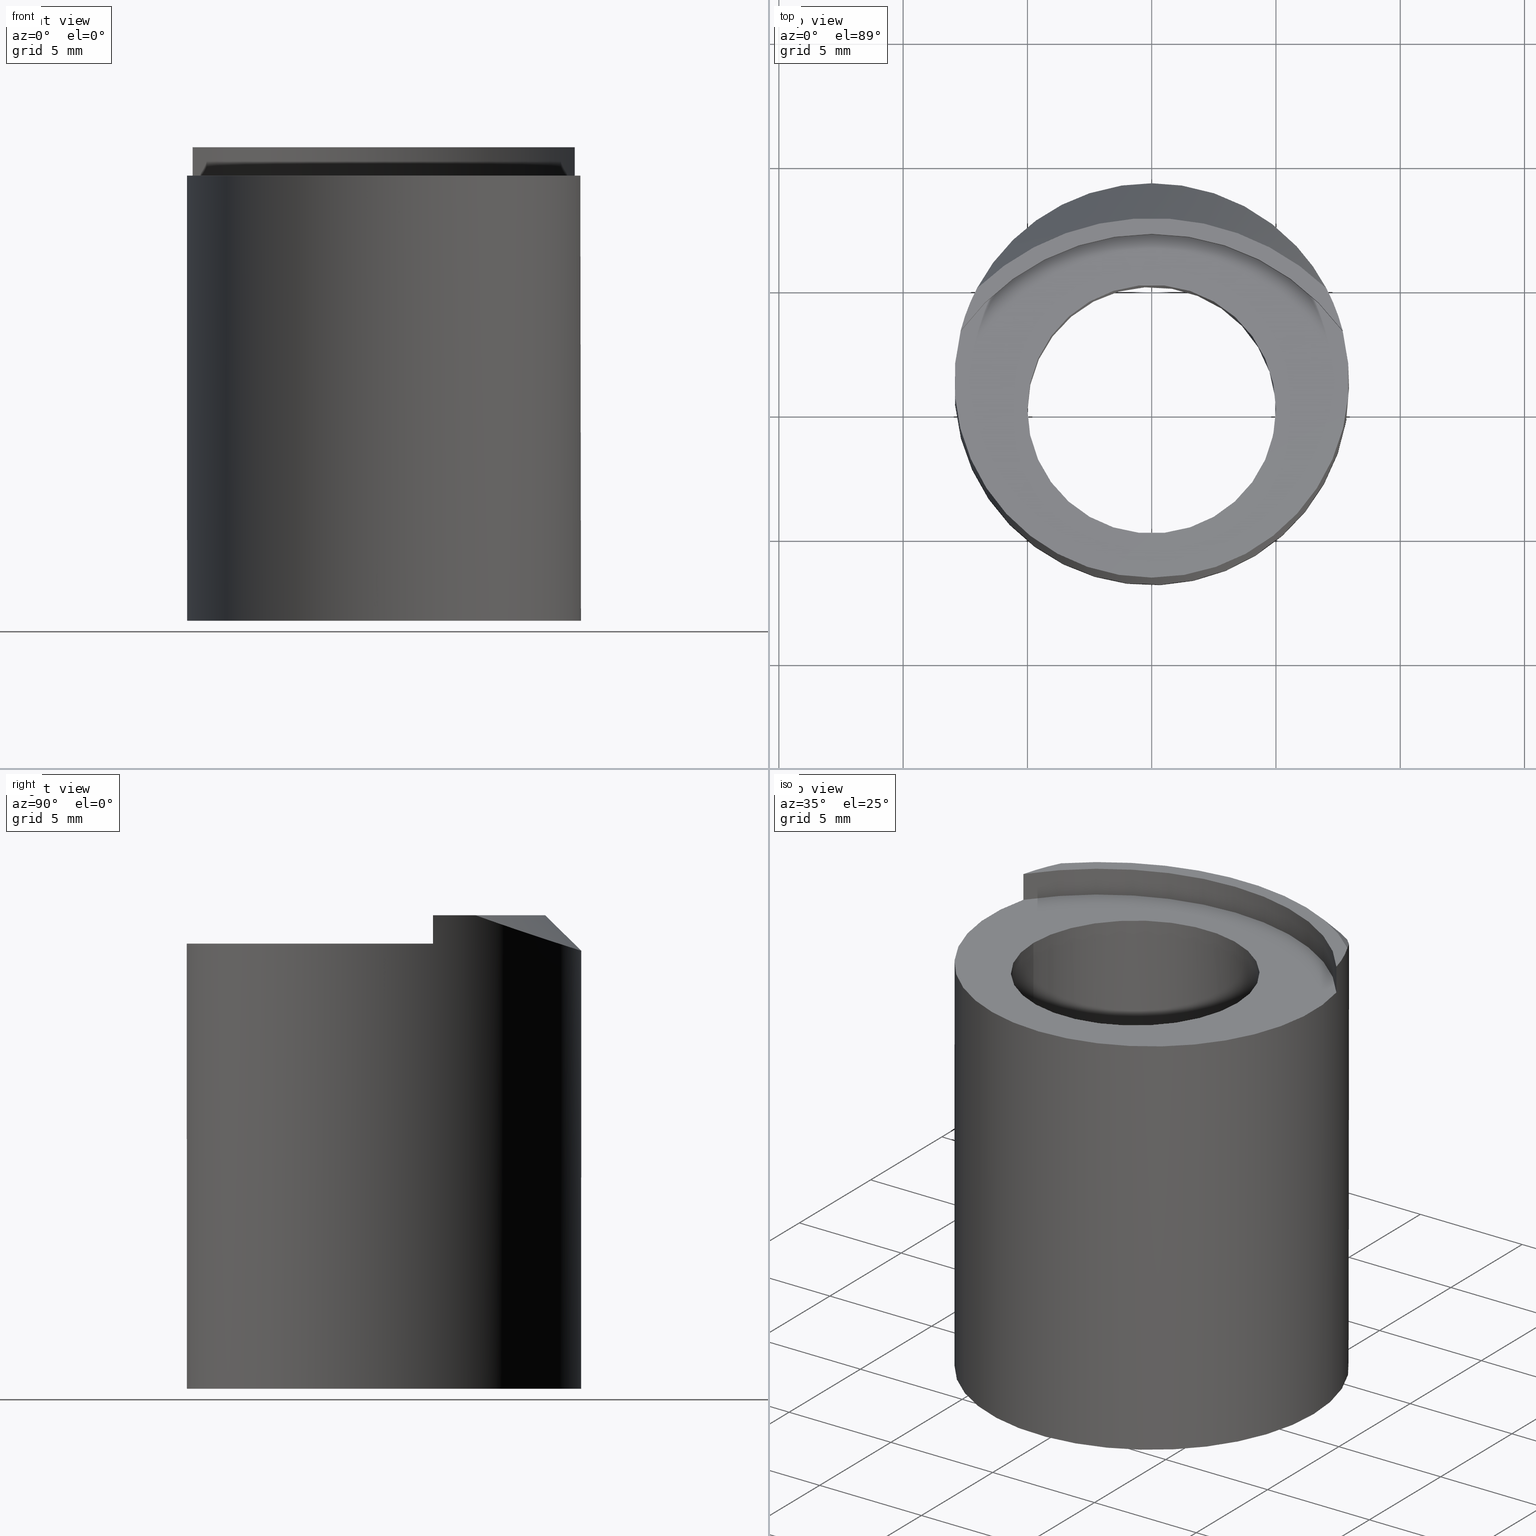
[diagram: canonical four-view strip — front | top / right | iso, engineering-drawing reading convention]
A machine part, canonical four-view strip (front | top / right | iso — engineering-drawing reading convention). The complete STEP part file that produces these views, byte-faithful:
ISO-10303-21;
HEADER;
FILE_DESCRIPTION (( 'STEP AP214' ),
    '1' );
FILE_NAME ('BK0007.STEP',
    '2012-08-02T19:01:26',
    ( '' ),
    ( '' ),
    'SwSTEP 2.0',
    'SolidWorks 2012',
    '' );
FILE_SCHEMA (( 'AUTOMOTIVE_DESIGN' ));
ENDSEC;

DATA;
#1 = PRODUCT_DEFINITION_CONTEXT ( 'detailed design', #143, 'design' ) ;
#2 = PRODUCT_DEFINITION_SHAPE ( 'NONE', 'NONE',  #75 ) ;
#3 = EDGE_CURVE ( 'NONE', #283, #283, #216, .T. ) ;
#4 = EDGE_CURVE ( 'NONE', #220, #214, #28, .T. ) ;
#5 = EDGE_CURVE ( 'NONE', #282, #282, #287, .T. ) ;
#6 = EDGE_CURVE ( 'NONE', #206, #211, #289, .T. ) ;
#7 = EDGE_CURVE ( 'NONE', #206, #214, #259, .T. ) ;
#8 = EDGE_CURVE ( 'NONE', #220, #222, #230, .T. ) ;
#9 = EDGE_CURVE ( 'NONE', #255, #255, #292, .T. ) ;
#10 = EDGE_CURVE ( 'NONE', #219, #211, #240, .T. ) ;
#11 = EDGE_CURVE ( 'NONE', #211, #219, #296, .T. ) ;
#12 = EDGE_CURVE ( 'NONE', #206, #222, #288, .T. ) ;
#13 = DIRECTION ( 'NONE',  ( -1.000000000000000000, 0.0000000000000000000, 0.0000000000000000000 ) ) ;
#14 = CARTESIAN_POINT ( 'NONE',  ( 0.3026978152996571100, 0.1232572296140836500, 0.7275000000000001500 ) ) ;
#15 = CARTESIAN_POINT ( 'NONE',  ( -0.2639185556648692100, 0.2152199699562641900, 0.7411820063344279900 ) ) ;
#16 = CARTESIAN_POINT ( 'NONE',  ( -0.2767838932136466600, 0.1906744635389196800, 0.7500000000000001100 ) ) ;
#17 = DIRECTION ( 'NONE',  ( 0.0000000000000000000, 0.0000000000000000000, -1.000000000000000000 ) ) ;
#18 = CARTESIAN_POINT ( 'NONE',  ( -0.09941511264093359800, 0.3422108810394044500, 0.6988311407053969800 ) ) ;
#19 = CARTESIAN_POINT ( 'NONE',  ( -0.2092963217709726500, 0.2780903867774015500, 0.7197299492056457000 ) ) ;
#20 = CARTESIAN_POINT ( 'NONE',  ( -0.2196203082285445900, 0.2683481359285012600, 0.7229924179772816400 ) ) ;
#21 = CARTESIAN_POINT ( 'NONE',  ( -0.1874002531696883600, 0.2960753518701791400, 0.7137647165990170800 ) ) ;
#22 = CARTESIAN_POINT ( 'NONE',  ( -0.1130841271041534100, 0.3372736901040893100, 0.7004043256038181600 ) ) ;
#23 = CARTESIAN_POINT ( 'NONE',  ( -0.1393090193203537200, 0.3256973525380113500, 0.7041197478792662300 ) ) ;
#24 = CARTESIAN_POINT ( 'NONE',  ( -0.1759110791811329700, 0.3042710807239839000, 0.7110767639496367000 ) ) ;
#25 = CARTESIAN_POINT ( 'NONE',  ( -0.1518653794547868400, 0.3190819396654117100, 0.7062542649927352500 ) ) ;
#26 = CARTESIAN_POINT ( 'NONE',  ( 5.960459999999999900E-007, 0.04560001194499999800, 0.5000000000000000000 ) ) ;
#27 = CARTESIAN_POINT ( 'NONE',  ( -0.2480265516793695400, 0.2377303253298724600, 0.7333804475190042200 ) ) ;
#28 = B_SPLINE_CURVE_WITH_KNOTS ( 'NONE', 3,
 ( #16, #15, #27, #20, #19, #21, #24, #25, #23, #22, #18, #127, #89, #86, #87, #92, #90, #130, #95, #115, #106, #93, #135, #133, #110, #149, #94, #138, #113, #128 ),
 .UNSPECIFIED., .F., .F.,
 ( 4, 2, 2, 2, 2, 2, 2, 2, 2, 2, 2, 2, 2, 2, 4 ),
 ( 6.486295182886069500E-007, 0.002179896535405388200, 0.003269520488348935700, 0.004359144441292484000, 0.005448768394236030600, 0.006538392347179575500, 0.007628016300123122200, 0.008717640253066668800, 0.01089688815895376000, 0.01198651211189730700, 0.01307613606484085000, 0.01416576001778439500, 0.01525538397072794000, 0.01634500792367148100, 0.01743463187661502600 ),
 .UNSPECIFIED. ) ;
#29 = MANIFOLD_SOLID_BREP ( 'Cut-Extrude2', #268 ) ;
#30 = ADVANCED_FACE ( 'NONE', ( #241, #254 ), #227, .F. ) ;
#31 = ADVANCED_FACE ( 'NONE', ( #253 ), #233, .T. ) ;
#32 = ADVANCED_FACE ( 'NONE', ( #243 ), #236, .F. ) ;
#33 = DIMENSIONAL_EXPONENTS ( 1.000000000000000000, 0.0000000000000000000, 0.0000000000000000000, 0.0000000000000000000, 0.0000000000000000000, 0.0000000000000000000, 0.0000000000000000000 ) ;
#34 = ADVANCED_FACE ( 'NONE', ( #297, #210 ), #118, .F. ) ;
#35 = ADVANCED_FACE ( 'NONE', ( #298 ), #171, .T. ) ;
#36 = DIMENSIONAL_EXPONENTS ( 1.000000000000000000, 0.0000000000000000000, 0.0000000000000000000, 0.0000000000000000000, 0.0000000000000000000, 0.0000000000000000000, 0.0000000000000000000 ) ;
#37 = ADVANCED_FACE ( 'NONE', ( #284, #209 ), #207, .F. ) ;
#38 = DIMENSIONAL_EXPONENTS ( 1.000000000000000000, 0.0000000000000000000, 0.0000000000000000000, 0.0000000000000000000, 0.0000000000000000000, 0.0000000000000000000, 0.0000000000000000000 ) ;
#39 = ADVANCED_FACE ( 'NONE', ( #300, #301 ), #84, .T. ) ;
#40 = ADVANCED_FACE ( 'NONE', ( #304, #248 ), #303, .T. ) ;
#41 = ADVANCED_FACE ( 'NONE', ( #305, #226 ), #169, .T. ) ;
#42 = UNCERTAINTY_MEASURE_WITH_UNIT (LENGTH_MEASURE( 1.000000000000000100E-005 ), #175, 'distance_accuracy_value', 'NONE');
#43 = ADVANCED_BREP_SHAPE_REPRESENTATION ( 'BK0007', ( #29, #72 ), #54 ) ;
#44 = UNCERTAINTY_MEASURE_WITH_UNIT (LENGTH_MEASURE( 1.000000000000000100E-005 ), #197, 'distance_accuracy_value', 'NONE');
#45 = UNCERTAINTY_MEASURE_WITH_UNIT (LENGTH_MEASURE( 1.000000000000000100E-005 ), #191, 'distance_accuracy_value', 'NONE');
#46 = PRODUCT_RELATED_PRODUCT_CATEGORY ( 'part', '', ( #205 ) ) ;
#47 = PRODUCT_DEFINITION_FORMATION_WITH_SPECIFIED_SOURCE ( 'ANY', '', #205, .NOT_KNOWN. ) ;
#48 = AXIS2_PLACEMENT_3D ( 'NONE', #165, #183, #100 ) ;
#49 = AXIS2_PLACEMENT_3D ( 'NONE', #124, #172, #162 ) ;
#50 = AXIS2_PLACEMENT_3D ( 'NONE', #168, #136, #91 ) ;
#51 = AXIS2_PLACEMENT_3D ( 'NONE', #105, #167, #96 ) ;
#52 = AXIS2_PLACEMENT_3D ( 'NONE', #112, #102, #99 ) ;
#53 = AXIS2_PLACEMENT_3D ( 'NONE', #122, #126, #132 ) ;
#54 =( GEOMETRIC_REPRESENTATION_CONTEXT ( 3 ) GLOBAL_UNCERTAINTY_ASSIGNED_CONTEXT ( ( #44 ) ) GLOBAL_UNIT_ASSIGNED_CONTEXT ( ( #197, #195, #194 ) ) REPRESENTATION_CONTEXT ( 'NONE', 'WORKASPACE' ) );
#55 = STYLED_ITEM ( 'NONE', ( #250 ), #43 ) ;
#56 = PRESENTATION_LAYER_ASSIGNMENT (  '', '', ( #55 ) ) ;
#57 = MECHANICAL_DESIGN_GEOMETRIC_PRESENTATION_REPRESENTATION (  '', ( #55 ), #71 ) ;
#58 = EDGE_CURVE ( 'NONE', #219, #222, #291, .T. ) ;
#59 = AXIS2_PLACEMENT_3D ( 'NONE', #88, #114, #129 ) ;
#60 = AXIS2_PLACEMENT_3D ( 'NONE', #117, #170, #116 ) ;
#61 = AXIS2_PLACEMENT_3D ( 'NONE', #103, #120, #163 ) ;
#62 = EDGE_CURVE ( 'NONE', #208, #208, #257, .T. ) ;
#63 = EDGE_CURVE ( 'NONE', #220, #214, #279, .T. ) ;
#64 = AXIS2_PLACEMENT_3D ( 'NONE', #166, #176, #196 ) ;
#65 = EDGE_CURVE ( 'NONE', #261, #261, #244, .T. ) ;
#66 = AXIS2_PLACEMENT_3D ( 'NONE', #139, #140, #141 ) ;
#67 = AXIS2_PLACEMENT_3D ( 'NONE', #98, #83, #85 ) ;
#68 = AXIS2_PLACEMENT_3D ( 'NONE', #26, #17, #13 ) ;
#69 = AXIS2_PLACEMENT_3D ( 'NONE', #159, #144, #146 ) ;
#70 = AXIS2_PLACEMENT_3D ( 'NONE', #150, #153, #154 ) ;
#71 =( GEOMETRIC_REPRESENTATION_CONTEXT ( 3 ) GLOBAL_UNCERTAINTY_ASSIGNED_CONTEXT ( ( #42 ) ) GLOBAL_UNIT_ASSIGNED_CONTEXT ( ( #175, #173, #174 ) ) REPRESENTATION_CONTEXT ( 'NONE', 'WORKASPACE' ) );
#72 = AXIS2_PLACEMENT_3D ( 'NONE', #155, #152, #151 ) ;
#73 = AXIS2_PLACEMENT_3D ( 'NONE', #179, #181, #184 ) ;
#74 = STYLED_ITEM ( 'NONE', ( #293 ), #29 ) ;
#75 = PRODUCT_DEFINITION ( 'UNKNOWN', '', #47, #1 ) ;
#76 = AXIS2_PLACEMENT_3D ( 'NONE', #156, #157, #158 ) ;
#77 = PRESENTATION_LAYER_ASSIGNMENT (  '', '', ( #74 ) ) ;
#78 = MECHANICAL_DESIGN_GEOMETRIC_PRESENTATION_REPRESENTATION (  '', ( #74 ), #81 ) ;
#79 = AXIS2_PLACEMENT_3D ( 'NONE', #201, #193, #177 ) ;
#80 = AXIS2_PLACEMENT_3D ( 'NONE', #164, #178, #198 ) ;
#81 =( GEOMETRIC_REPRESENTATION_CONTEXT ( 3 ) GLOBAL_UNCERTAINTY_ASSIGNED_CONTEXT ( ( #45 ) ) GLOBAL_UNIT_ASSIGNED_CONTEXT ( ( #191, #189, #192 ) ) REPRESENTATION_CONTEXT ( 'NONE', 'WORKASPACE' ) );
#82 = AXIS2_PLACEMENT_3D ( 'NONE', #123, #134, #160 ) ;
#83 = DIRECTION ( 'NONE',  ( 0.0000000000000000000, 0.0000000000000000000, -1.000000000000000000 ) ) ;
#84 = PLANE ( 'NONE',  #49 ) ;
#85 = DIRECTION ( 'NONE',  ( -1.000000000000000000, 0.0000000000000000000, 0.0000000000000000000 ) ) ;
#86 = CARTESIAN_POINT ( 'NONE',  ( -0.02942585718906434000, 0.3570426406912264300, 0.6941327856468166900 ) ) ;
#87 = CARTESIAN_POINT ( 'NONE',  ( -0.01486769253461019800, 0.3580814827936573700, 0.6938058559884646700 ) ) ;
#88 = CARTESIAN_POINT ( 'NONE',  ( 5.960459999999999900E-007, 0.04560001194499999800, 0.0000000000000000000 ) ) ;
#89 = CARTESIAN_POINT ( 'NONE',  ( -0.05786213872511222100, 0.3530318435356197800, 0.6953988782048032800 ) ) ;
#90 = CARTESIAN_POINT ( 'NONE',  ( 0.05696458766030772900, 0.3542261892799814500, 0.6950149391125388700 ) ) ;
#91 = DIRECTION ( 'NONE',  ( -1.000000000000000000, 0.0000000000000000000, 0.0000000000000000000 ) ) ;
#92 = CARTESIAN_POINT ( 'NONE',  ( 0.02855312797940711200, 0.3581363225337340600, 0.6937885250939476200 ) ) ;
#93 = CARTESIAN_POINT ( 'NONE',  ( 0.1753123943739518000, 0.3046845034146523600, 0.7109409087088665000 ) ) ;
#94 = CARTESIAN_POINT ( 'NONE',  ( 0.2469634670038901600, 0.2375912590721830900, 0.7334663593087816800 ) ) ;
#95 = CARTESIAN_POINT ( 'NONE',  ( 0.1123229643740640000, 0.3375639856250709500, 0.7003113484474908800 ) ) ;
#96 = DIRECTION ( 'NONE',  ( -1.000000000000000000, 0.0000000000000000000, 0.0000000000000000000 ) ) ;
#97 = CARTESIAN_POINT ( 'NONE',  ( 0.3026978152996571700, 0.1232572296140837000, 0.7049999999999999600 ) ) ;
#98 = CARTESIAN_POINT ( 'NONE',  ( 5.960459999999999900E-007, 0.04560001194499999800, 0.0000000000000000000 ) ) ;
#99 = DIRECTION ( 'NONE',  ( -1.000000000000000000, 0.0000000000000000000, 0.0000000000000000000 ) ) ;
#100 = DIRECTION ( 'NONE',  ( -1.000000000000000000, 0.0000000000000000000, 0.0000000000000000000 ) ) ;
#101 = CARTESIAN_POINT ( 'NONE',  ( -0.1968999952080000300, 0.0000000000000000000, 0.5000000000000000000 ) ) ;
#102 = DIRECTION ( 'NONE',  ( -0.0000000000000000000, 0.0000000000000000000, -1.000000000000000000 ) ) ;
#103 = CARTESIAN_POINT ( 'NONE',  ( 5.960459999999999900E-007, 0.04560001194499999800, 0.7500000000000001100 ) ) ;
#104 = CARTESIAN_POINT ( 'NONE',  ( -0.2599994039540000100, 0.04560001194499999800, 0.0000000000000000000 ) ) ;
#105 = CARTESIAN_POINT ( 'NONE',  ( 5.960459999999999900E-007, 0.04560001194499999800, 0.5000000000000000000 ) ) ;
#106 = CARTESIAN_POINT ( 'NONE',  ( 0.1510245301884645700, 0.3195539709768076000, 0.7061009773158929400 ) ) ;
#107 = CARTESIAN_POINT ( 'NONE',  ( 0.3026978152996571700, 0.1232572296140837000, 0.7500000000000001100 ) ) ;
#108 = CARTESIAN_POINT ( 'NONE',  ( 0.3125005960460000000, 0.04560001194499999800, 0.0000000000000000000 ) ) ;
#109 = CARTESIAN_POINT ( 'NONE',  ( -0.2599994039540000100, 0.04560001194499999800, 0.5000000000000000000 ) ) ;
#110 = CARTESIAN_POINT ( 'NONE',  ( 0.2190499860789380200, 0.2689126451511062400, 0.7228018721960508500 ) ) ;
#111 = CARTESIAN_POINT ( 'NONE',  ( -0.2767838932136466600, 0.1906744635389196800, 0.7500000000000001100 ) ) ;
#112 = CARTESIAN_POINT ( 'NONE',  ( 0.0000000000000000000, -0.09810002148200000500, 0.7500000000000001100 ) ) ;
#113 = CARTESIAN_POINT ( 'NONE',  ( 0.2703509124914769100, 0.2029503339649999000, 0.7455890775983956600 ) ) ;
#114 = DIRECTION ( 'NONE',  ( 0.0000000000000000000, 0.0000000000000000000, 1.000000000000000000 ) ) ;
#115 = CARTESIAN_POINT ( 'NONE',  ( 0.1384264058692225900, 0.3261308864110156700, 0.7039797748760724400 ) ) ;
#116 = DIRECTION ( 'NONE',  ( 1.000000000000000000, 0.0000000000000000000, 0.0000000000000000000 ) ) ;
#117 = CARTESIAN_POINT ( 'NONE',  ( 0.0000000000000000000, -0.09810002148200000500, 0.7049999999999999600 ) ) ;
#118 = PLANE ( 'NONE',  #59 ) ;
#119 = SURFACE_STYLE_USAGE ( .BOTH. , #188 ) ;
#120 = DIRECTION ( 'NONE',  ( 0.0000000000000000000, 0.0000000000000000000, 1.000000000000000000 ) ) ;
#121 = CARTESIAN_POINT ( 'NONE',  ( -0.3026959789764594500, 0.1232597406959595300, 0.7049999999999999600 ) ) ;
#122 = CARTESIAN_POINT ( 'NONE',  ( 0.0000000000000000000, 0.0000000000000000000, 0.7049999999999999600 ) ) ;
#123 = CARTESIAN_POINT ( 'NONE',  ( 0.0000000000000000000, 0.0000000000000000000, 0.5000000000000000000 ) ) ;
#124 = CARTESIAN_POINT ( 'NONE',  ( 0.0000000000000000000, -0.09810002148200000500, 0.7049999999999999600 ) ) ;
#125 = CARTESIAN_POINT ( 'NONE',  ( -0.3026959789764594500, 0.1232597406959595300, 0.7500000000000001100 ) ) ;
#126 = DIRECTION ( 'NONE',  ( 0.0000000000000000000, 0.0000000000000000000, 1.000000000000000000 ) ) ;
#127 = CARTESIAN_POINT ( 'NONE',  ( -0.07185953313661697100, 0.3500628383007320900, 0.6963371016701023200 ) ) ;
#128 = CARTESIAN_POINT ( 'NONE',  ( 0.2767862887898799300, 0.1906721674135478400, 0.7500000000000001100 ) ) ;
#129 = DIRECTION ( 'NONE',  ( 1.000000000000000000, 0.0000000000000000000, 0.0000000000000000000 ) ) ;
#130 = CARTESIAN_POINT ( 'NONE',  ( 0.09877519526621123000, 0.3424324890564950400, 0.6987602969720730900 ) ) ;
#131 = CARTESIAN_POINT ( 'NONE',  ( 0.2767862887898799300, 0.1906721674135478400, 0.7500000000000001100 ) ) ;
#132 = DIRECTION ( 'NONE',  ( 1.000000000000000000, 0.0000000000000000000, 0.0000000000000000000 ) ) ;
#133 = CARTESIAN_POINT ( 'NONE',  ( 0.2088432850167535600, 0.2784943385198047600, 0.7195946292584773900 ) ) ;
#134 = DIRECTION ( 'NONE',  ( 0.0000000000000000000, 0.0000000000000000000, -1.000000000000000000 ) ) ;
#135 = CARTESIAN_POINT ( 'NONE',  ( 0.1870223553326164600, 0.2963546682140423300, 0.7136723516635438100 ) ) ;
#136 = DIRECTION ( 'NONE',  ( -0.0000000000000000000, 0.0000000000000000000, -1.000000000000000000 ) ) ;
#137 = DIRECTION ( 'NONE',  ( -0.0000000000000000000, -0.0000000000000000000, -1.000000000000000000 ) ) ;
#138 = CARTESIAN_POINT ( 'NONE',  ( 0.2631053243699658700, 0.2147957581645392700, 0.7414062346094290000 ) ) ;
#139 = CARTESIAN_POINT ( 'NONE',  ( 5.960459999999999900E-007, 0.04560001194499999800, 0.7500000000000001100 ) ) ;
#140 = DIRECTION ( 'NONE',  ( 0.0000000000000000000, 0.0000000000000000000, 1.000000000000000000 ) ) ;
#141 = DIRECTION ( 'NONE',  ( 1.000000000000000000, 0.0000000000000000000, 0.0000000000000000000 ) ) ;
#142 = APPLICATION_PROTOCOL_DEFINITION ( 'draft international standard', 'automotive_design', 1998, #143 ) ;
#143 = APPLICATION_CONTEXT ( 'automotive_design' ) ;
#144 = DIRECTION ( 'NONE',  ( 0.0000000000000000000, 0.0000000000000000000, 1.000000000000000000 ) ) ;
#145 = DIRECTION ( 'NONE',  ( 0.0000000000000000000, 0.0000000000000000000, 1.000000000000000000 ) ) ;
#146 = DIRECTION ( 'NONE',  ( 1.000000000000000000, 0.0000000000000000000, 0.0000000000000000000 ) ) ;
#147 = FILL_AREA_STYLE_COLOUR ( '', #286 ) ;
#148 = PRODUCT_CONTEXT ( 'NONE', #203, 'mechanical' ) ;
#149 = CARTESIAN_POINT ( 'NONE',  ( 0.2380910334008283200, 0.2484894179361305200, 0.7297279134965609600 ) ) ;
#150 = CARTESIAN_POINT ( 'NONE',  ( 5.960459999999999900E-007, 0.04560001194499999800, 0.0000000000000000000 ) ) ;
#151 = DIRECTION ( 'NONE',  ( 1.000000000000000000, 0.0000000000000000000, 0.0000000000000000000 ) ) ;
#152 = DIRECTION ( 'NONE',  ( 0.0000000000000000000, 0.0000000000000000000, 1.000000000000000000 ) ) ;
#153 = DIRECTION ( 'NONE',  ( 0.0000000000000000000, 0.0000000000000000000, 1.000000000000000000 ) ) ;
#154 = DIRECTION ( 'NONE',  ( 1.000000000000000000, 0.0000000000000000000, 0.0000000000000000000 ) ) ;
#155 = CARTESIAN_POINT ( 'NONE',  ( 0.0000000000000000000, 0.0000000000000000000, 0.0000000000000000000 ) ) ;
#156 = CARTESIAN_POINT ( 'NONE',  ( 5.960459999999999900E-007, 0.04560001194499999800, 0.7049999999999999600 ) ) ;
#157 = DIRECTION ( 'NONE',  ( 0.0000000000000000000, 0.0000000000000000000, 1.000000000000000000 ) ) ;
#158 = DIRECTION ( 'NONE',  ( 1.000000000000000000, 0.0000000000000000000, 0.0000000000000000000 ) ) ;
#159 = CARTESIAN_POINT ( 'NONE',  ( 5.960459999999999900E-007, 0.04560001194499999800, 0.7500000000000001100 ) ) ;
#160 = DIRECTION ( 'NONE',  ( -1.000000000000000000, 0.0000000000000000000, 0.0000000000000000000 ) ) ;
#161 = CARTESIAN_POINT ( 'NONE',  ( -0.3026959789764593900, 0.1232597406959595300, 0.7275000000000001500 ) ) ;
#162 = DIRECTION ( 'NONE',  ( 1.000000000000000000, 0.0000000000000000000, 0.0000000000000000000 ) ) ;
#163 = DIRECTION ( 'NONE',  ( 1.000000000000000000, 0.0000000000000000000, 0.0000000000000000000 ) ) ;
#164 = CARTESIAN_POINT ( 'NONE',  ( 5.960459999999999900E-007, 0.04560001194499999800, 0.5000000000000000000 ) ) ;
#165 = CARTESIAN_POINT ( 'NONE',  ( 0.0000000000000000000, 0.0000000000000000000, 0.7500000000000001100 ) ) ;
#166 = CARTESIAN_POINT ( 'NONE',  ( 0.0000000000000000000, -0.09810002148200000500, 0.7049999999999999600 ) ) ;
#167 = DIRECTION ( 'NONE',  ( 0.0000000000000000000, 0.0000000000000000000, -1.000000000000000000 ) ) ;
#168 = CARTESIAN_POINT ( 'NONE',  ( 5.960459999999999900E-007, 0.04560001194499999800, 0.7500000000000001100 ) ) ;
#169 = PLANE ( 'NONE',  #51 ) ;
#170 = DIRECTION ( 'NONE',  ( 0.0000000000000000000, 0.0000000000000000000, 1.000000000000000000 ) ) ;
#171 = PLANE ( 'NONE',  #61 ) ;
#172 = DIRECTION ( 'NONE',  ( 0.0000000000000000000, 0.0000000000000000000, 1.000000000000000000 ) ) ;
#173 =( NAMED_UNIT ( * ) PLANE_ANGLE_UNIT ( ) SI_UNIT ( $, .RADIAN. ) );
#174 =( NAMED_UNIT ( * ) SI_UNIT ( $, .STERADIAN. ) SOLID_ANGLE_UNIT ( ) );
#175 =( CONVERSION_BASED_UNIT ( 'INCH', #213 ) LENGTH_UNIT ( ) NAMED_UNIT ( #33 ) );
#176 = DIRECTION ( 'NONE',  ( 0.0000000000000000000, 0.0000000000000000000, 1.000000000000000000 ) ) ;
#177 = DIRECTION ( 'NONE',  ( -1.000000000000000000, 0.0000000000000000000, 0.0000000000000000000 ) ) ;
#178 = DIRECTION ( 'NONE',  ( -0.0000000000000000000, 0.0000000000000000000, -1.000000000000000000 ) ) ;
#179 = CARTESIAN_POINT ( 'NONE',  ( 0.0000000000000000000, -0.09810002148200000500, 0.7500000000000001100 ) ) ;
#180 = SURFACE_STYLE_USAGE ( .BOTH. , #200 ) ;
#181 = DIRECTION ( 'NONE',  ( 0.0000000000000000000, 0.0000000000000000000, 1.000000000000000000 ) ) ;
#182 = FILL_AREA_STYLE_COLOUR ( '', #277 ) ;
#183 = DIRECTION ( 'NONE',  ( -0.0000000000000000000, 0.0000000000000000000, -1.000000000000000000 ) ) ;
#184 = DIRECTION ( 'NONE',  ( 1.000000000000000000, 0.0000000000000000000, 0.0000000000000000000 ) ) ;
#185 =( LENGTH_UNIT ( ) NAMED_UNIT ( * ) SI_UNIT ( $, .METRE. ) );
#186 = APPLICATION_PROTOCOL_DEFINITION ( 'draft international standard', 'automotive_design', 1998, #203 ) ;
#187 = FILL_AREA_STYLE ('',( #147 ) ) ;
#188 = SURFACE_SIDE_STYLE ('',( #237 ) ) ;
#189 =( NAMED_UNIT ( * ) PLANE_ANGLE_UNIT ( ) SI_UNIT ( $, .RADIAN. ) );
#190 =( LENGTH_UNIT ( ) NAMED_UNIT ( * ) SI_UNIT ( $, .METRE. ) );
#191 =( CONVERSION_BASED_UNIT ( 'INCH', #242 ) LENGTH_UNIT ( ) NAMED_UNIT ( #36 ) );
#192 =( NAMED_UNIT ( * ) SI_UNIT ( $, .STERADIAN. ) SOLID_ANGLE_UNIT ( ) );
#193 = DIRECTION ( 'NONE',  ( -0.0000000000000000000, 0.0000000000000000000, -1.000000000000000000 ) ) ;
#194 =( NAMED_UNIT ( * ) SI_UNIT ( $, .STERADIAN. ) SOLID_ANGLE_UNIT ( ) );
#195 =( NAMED_UNIT ( * ) PLANE_ANGLE_UNIT ( ) SI_UNIT ( $, .RADIAN. ) );
#196 = DIRECTION ( 'NONE',  ( 1.000000000000000000, 0.0000000000000000000, 0.0000000000000000000 ) ) ;
#197 =( CONVERSION_BASED_UNIT ( 'INCH', #238 ) LENGTH_UNIT ( ) NAMED_UNIT ( #38 ) );
#198 = DIRECTION ( 'NONE',  ( -1.000000000000000000, 0.0000000000000000000, 0.0000000000000000000 ) ) ;
#199 =( LENGTH_UNIT ( ) NAMED_UNIT ( * ) SI_UNIT ( $, .METRE. ) );
#200 = SURFACE_SIDE_STYLE ('',( #299 ) ) ;
#201 = CARTESIAN_POINT ( 'NONE',  ( 0.0000000000000000000, -0.09810002148200000500, 0.7500000000000001100 ) ) ;
#202 = FILL_AREA_STYLE ('',( #182 ) ) ;
#203 = APPLICATION_CONTEXT ( 'automotive_design' ) ;
#204 = CARTESIAN_POINT ( 'NONE',  ( 0.1968999952080000300, 0.0000000000000000000, 0.7049999999999999600 ) ) ;
#205 = PRODUCT ( 'BK0007', 'BK0007', '', ( #148 ) ) ;
#206 = VERTEX_POINT ( 'NONE', #107 ) ;
#207 = CYLINDRICAL_SURFACE ( 'NONE', #48, 0.1968999952080000300 ) ;
#208 = VERTEX_POINT ( 'NONE', #101 ) ;
#209 = FACE_OUTER_BOUND ( 'NONE', #239, .T. ) ;
#210 = FACE_OUTER_BOUND ( 'NONE', #266, .T. ) ;
#211 = VERTEX_POINT ( 'NONE', #97 ) ;
#212 = ORIENTED_EDGE ( 'NONE', *, *, #5, .F. ) ;
#213 = LENGTH_MEASURE_WITH_UNIT ( LENGTH_MEASURE( 0.02539999999999999900 ), #185 );
#214 = VERTEX_POINT ( 'NONE', #131 ) ;
#215 = ORIENTED_EDGE ( 'NONE', *, *, #12, .F. ) ;
#216 = CIRCLE ( 'NONE', #68, 0.2600000000000000100 ) ;
#217 = ORIENTED_EDGE ( 'NONE', *, *, #8, .F. ) ;
#218 = ORIENTED_EDGE ( 'NONE', *, *, #62, .F. ) ;
#219 = VERTEX_POINT ( 'NONE', #121 ) ;
#220 = VERTEX_POINT ( 'NONE', #111 ) ;
#221 = ORIENTED_EDGE ( 'NONE', *, *, #63, .T. ) ;
#222 = VERTEX_POINT ( 'NONE', #125 ) ;
#223 = ORIENTED_EDGE ( 'NONE', *, *, #5, .T. ) ;
#224 = ORIENTED_EDGE ( 'NONE', *, *, #58, .T. ) ;
#225 = EDGE_LOOP ( 'NONE', ( #221, #263 ) ) ;
#226 = FACE_OUTER_BOUND ( 'NONE', #235, .T. ) ;
#227 = CYLINDRICAL_SURFACE ( 'NONE', #80, 0.2600000000000000100 ) ;
#228 = ORIENTED_EDGE ( 'NONE', *, *, #6, .F. ) ;
#229 = ORIENTED_EDGE ( 'NONE', *, *, #3, .T. ) ;
#230 = CIRCLE ( 'NONE', #69, 0.3125000000000000000 ) ;
#231 = EDGE_LOOP ( 'NONE', ( #270, #228, #280, #285 ) ) ;
#232 = EDGE_LOOP ( 'NONE', ( #218 ) ) ;
#233 = CONICAL_SURFACE ( 'NONE', #79, 0.4000000334269995200, 0.7853981633974531600 ) ;
#234 = ORIENTED_EDGE ( 'NONE', *, *, #65, .T. ) ;
#235 = EDGE_LOOP ( 'NONE', ( #229 ) ) ;
#236 = CYLINDRICAL_SURFACE ( 'NONE', #60, 0.3749999999999999400 ) ;
#237 = SURFACE_STYLE_FILL_AREA ( #187 ) ;
#238 = LENGTH_MEASURE_WITH_UNIT ( LENGTH_MEASURE( 0.02539999999999999900 ), #199 );
#239 = EDGE_LOOP ( 'NONE', ( #260 ) ) ;
#240 = CIRCLE ( 'NONE', #76, 0.3125000000000000000 ) ;
#241 = FACE_OUTER_BOUND ( 'NONE', #245, .T. ) ;
#242 = LENGTH_MEASURE_WITH_UNIT ( LENGTH_MEASURE( 0.02539999999999999900 ), #190 );
#243 = FACE_OUTER_BOUND ( 'NONE', #231, .T. ) ;
#244 = CIRCLE ( 'NONE', #53, 0.1968999952080000300 ) ;
#245 = EDGE_LOOP ( 'NONE', ( #271 ) ) ;
#246 = VECTOR ( 'NONE', #145, 39.37007874015748100 ) ;
#247 = ORIENTED_EDGE ( 'NONE', *, *, #10, .T. ) ;
#248 = FACE_OUTER_BOUND ( 'NONE', #264, .T. ) ;
#249 = EDGE_LOOP ( 'NONE', ( #223 ) ) ;
#250 = PRESENTATION_STYLE_ASSIGNMENT (( #180 ) ) ;
#251 = SHAPE_DEFINITION_REPRESENTATION ( #2, #43 ) ;
#252 = ORIENTED_EDGE ( 'NONE', *, *, #8, .T. ) ;
#253 = FACE_OUTER_BOUND ( 'NONE', #225, .T. ) ;
#254 = FACE_OUTER_BOUND ( 'NONE', #249, .T. ) ;
#255 = VERTEX_POINT ( 'NONE', #108 ) ;
#256 = ORIENTED_EDGE ( 'NONE', *, *, #63, .F. ) ;
#257 = CIRCLE ( 'NONE', #82, 0.1968999952080000300 ) ;
#258 = ORIENTED_EDGE ( 'NONE', *, *, #11, .T. ) ;
#259 = CIRCLE ( 'NONE', #66, 0.3125000000000000000 ) ;
#260 = ORIENTED_EDGE ( 'NONE', *, *, #62, .T. ) ;
#261 = VERTEX_POINT ( 'NONE', #204 ) ;
#262 = EDGE_LOOP ( 'NONE', ( #212 ) ) ;
#263 = ORIENTED_EDGE ( 'NONE', *, *, #4, .F. ) ;
#264 = EDGE_LOOP ( 'NONE', ( #281 ) ) ;
#265 = ORIENTED_EDGE ( 'NONE', *, *, #6, .T. ) ;
#266 = EDGE_LOOP ( 'NONE', ( #276 ) ) ;
#267 = EDGE_LOOP ( 'NONE', ( #256, #252, #215, #290 ) ) ;
#268 = CLOSED_SHELL ( 'NONE', ( #37, #35, #34, #40, #32, #39, #31, #30, #41 ) ) ;
#269 = EDGE_LOOP ( 'NONE', ( #234 ) ) ;
#270 = ORIENTED_EDGE ( 'NONE', *, *, #11, .F. ) ;
#271 = ORIENTED_EDGE ( 'NONE', *, *, #3, .F. ) ;
#272 = EDGE_LOOP ( 'NONE', ( #247, #258 ) ) ;
#273 = EDGE_LOOP ( 'NONE', ( #217, #294, #275, #265, #295, #224 ) ) ;
#274 = EDGE_LOOP ( 'NONE', ( #302 ) ) ;
#275 = ORIENTED_EDGE ( 'NONE', *, *, #7, .F. ) ;
#276 = ORIENTED_EDGE ( 'NONE', *, *, #9, .F. ) ;
#277 = COLOUR_RGB ( '',0.7921568627450980000, 0.8196078431372548800, 0.9333333333333333500 ) ;
#278 = VECTOR ( 'NONE', #137, 39.37007874015748100 ) ;
#279 = CIRCLE ( 'NONE', #52, 0.4000000334269995200 ) ;
#280 = ORIENTED_EDGE ( 'NONE', *, *, #12, .T. ) ;
#281 = ORIENTED_EDGE ( 'NONE', *, *, #9, .T. ) ;
#282 = VERTEX_POINT ( 'NONE', #104 ) ;
#283 = VERTEX_POINT ( 'NONE', #109 ) ;
#284 = FACE_OUTER_BOUND ( 'NONE', #269, .T. ) ;
#285 = ORIENTED_EDGE ( 'NONE', *, *, #58, .F. ) ;
#286 = COLOUR_RGB ( '',0.7921568627450980000, 0.8196078431372548800, 0.9333333333333333500 ) ;
#287 = CIRCLE ( 'NONE', #67, 0.2600000000000000100 ) ;
#288 = CIRCLE ( 'NONE', #73, 0.3749999999999999400 ) ;
#289 = LINE ( 'NONE', #14, #278 ) ;
#290 = ORIENTED_EDGE ( 'NONE', *, *, #7, .T. ) ;
#291 = LINE ( 'NONE', #161, #246 ) ;
#292 = CIRCLE ( 'NONE', #70, 0.3125000000000000000 ) ;
#293 = PRESENTATION_STYLE_ASSIGNMENT (( #119 ) ) ;
#294 = ORIENTED_EDGE ( 'NONE', *, *, #4, .T. ) ;
#295 = ORIENTED_EDGE ( 'NONE', *, *, #10, .F. ) ;
#296 = CIRCLE ( 'NONE', #64, 0.3749999999999999400 ) ;
#297 = FACE_BOUND ( 'NONE', #262, .T. ) ;
#298 = FACE_OUTER_BOUND ( 'NONE', #267, .T. ) ;
#299 = SURFACE_STYLE_FILL_AREA ( #202 ) ;
#300 = FACE_BOUND ( 'NONE', #274, .T. ) ;
#301 = FACE_OUTER_BOUND ( 'NONE', #272, .T. ) ;
#302 = ORIENTED_EDGE ( 'NONE', *, *, #65, .F. ) ;
#303 = CYLINDRICAL_SURFACE ( 'NONE', #50, 0.3125000000000000000 ) ;
#304 = FACE_OUTER_BOUND ( 'NONE', #273, .T. ) ;
#305 = FACE_BOUND ( 'NONE', #232, .T. ) ;
ENDSEC;
END-ISO-10303-21;
